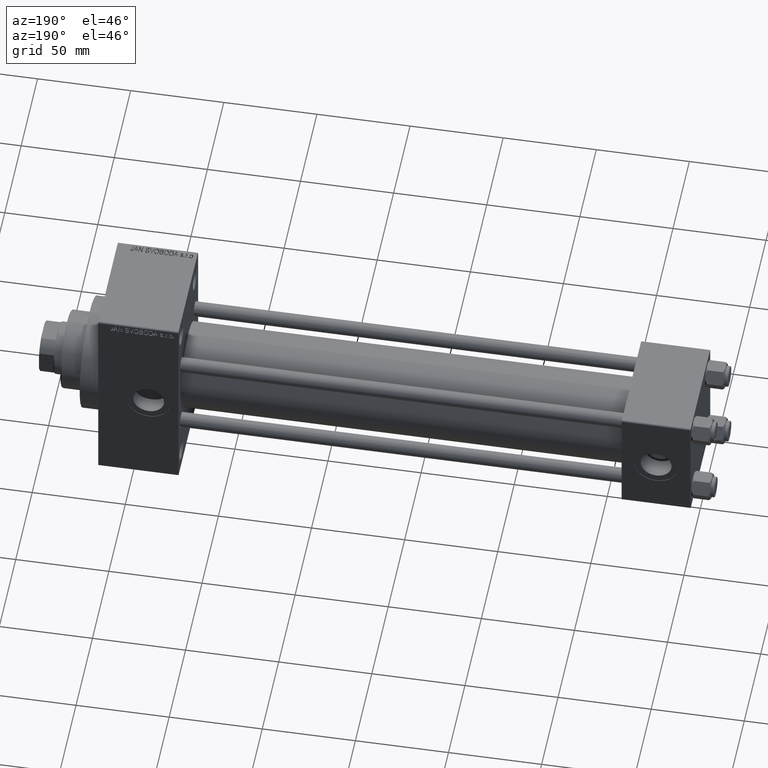
[diagram: clean part render]
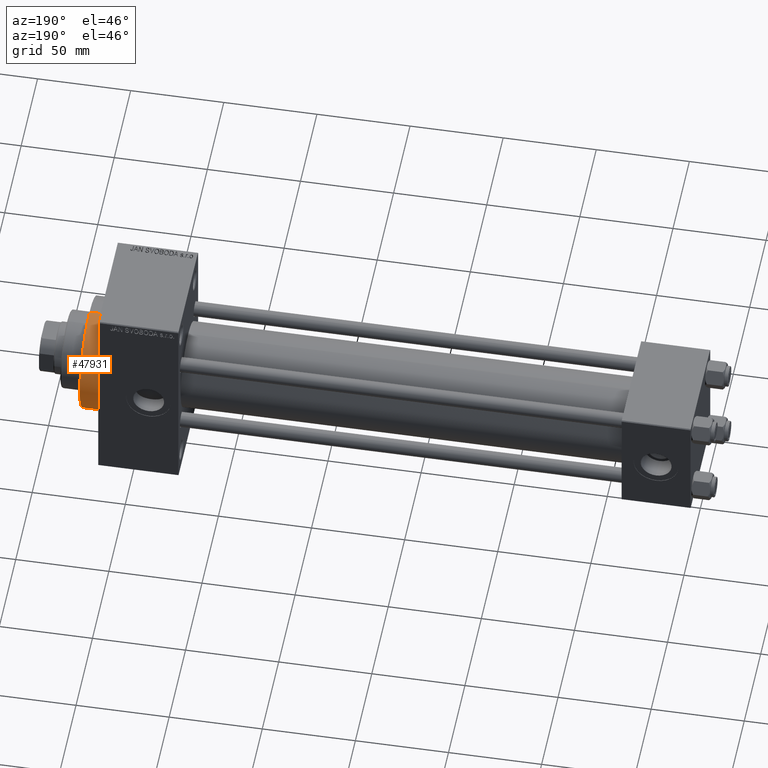
[diagram: same view with one face highlighted and labeled with its STEP entity id]
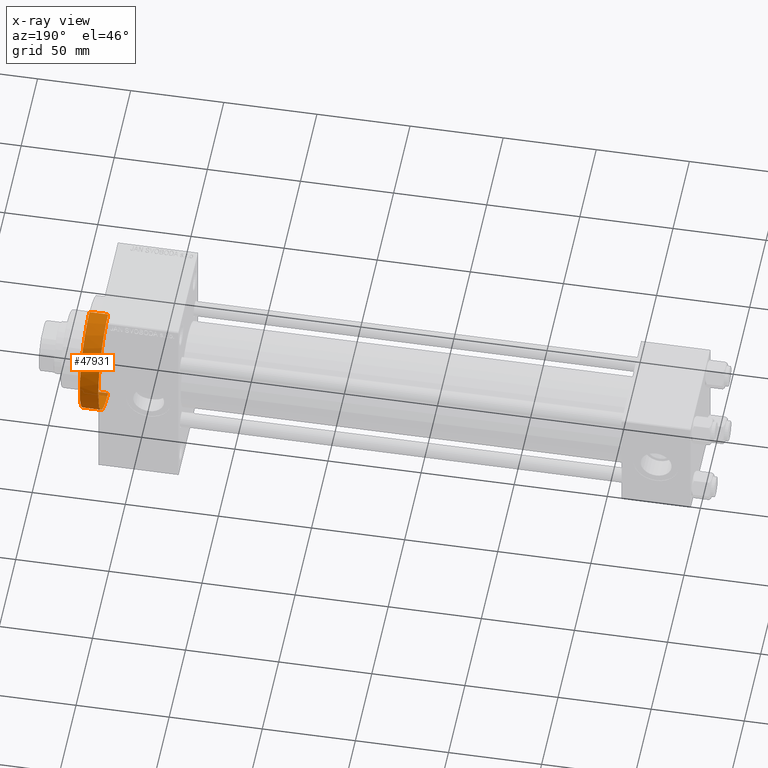
[diagram: x-ray of the same camera — body ghosted, the highlighted face saturated]
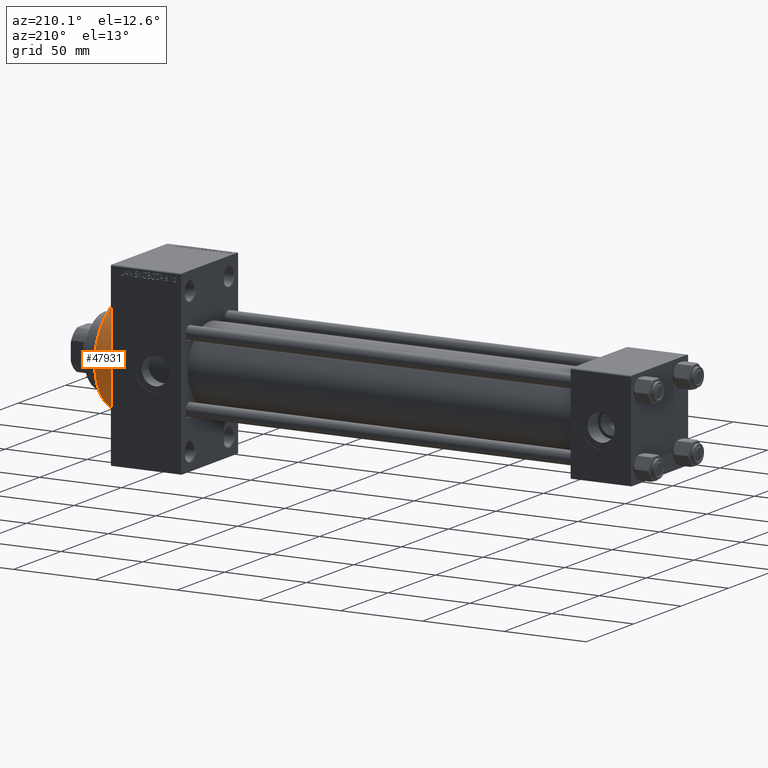
[diagram: same view with one face highlighted and labeled with its STEP entity id]
A machine part, auxiliary view. The second image highlights one B-rep face of the part: STEP entity #47931.
The next image is the same camera in x-ray: the body ghosted, the highlighted face saturated — about 2% of this face is hidden behind the body in this view.
A second angle (auxiliary view) of the same face is appended — the face is thin or edge-on in the first view.
In plain terms, the highlighted cylindrical surface (partial cylindrical patch) has radius 30 mm, axis along (-1, -0, -0).
Its self-contained STEP definition (entity closure, byte-faithful):
#766 = DIRECTION ( 'NONE',  ( 1.000000000000000000, 0.000000000000000000, 0.000000000000000000 ) ) ;
#4825 = CYLINDRICAL_SURFACE ( 'NONE', #36218, 30.00000000000000000 ) ;
#4969 = AXIS2_PLACEMENT_3D ( 'NONE', #8070, #5063, #26759 ) ;
#5063 = DIRECTION ( 'NONE',  ( 1.000000000000000000, 0.000000000000000000, 0.000000000000000000 ) ) ;
#6880 = CARTESIAN_POINT ( 'NONE',  ( 327.9999999999999432, 3.673940397442059178E-15, -30.00000000000000000 ) ) ;
#7121 = DIRECTION ( 'NONE',  ( -1.000000000000000000, -0.000000000000000000, -0.000000000000000000 ) ) ;
#7532 = CARTESIAN_POINT ( 'NONE',  ( 327.9999999999999432, 3.673940397442059178E-15, -30.00000000000000000 ) ) ;
#8070 = CARTESIAN_POINT ( 'NONE',  ( 317.9999999999999432, 0.000000000000000000, 0.000000000000000000 ) ) ;
#9299 = DIRECTION ( 'NONE',  ( -1.000000000000000000, -0.000000000000000000, -0.000000000000000000 ) ) ;
#9618 = EDGE_CURVE ( 'NONE', #33020, #22167, #27947, .T. ) ;
#10178 = CARTESIAN_POINT ( 'NONE',  ( 317.9999999999999432, 30.00000000000000000, 0.000000000000000000 ) ) ;
#12045 = VERTEX_POINT ( 'NONE', #10178 ) ;
#13563 = ORIENTED_EDGE ( 'NONE', *, *, #23058, .T. ) ;
#13591 = AXIS2_PLACEMENT_3D ( 'NONE', #34154, #38879, #42611 ) ;
#14107 = LINE ( 'NONE', #6880, #41843 ) ;
#14279 = VERTEX_POINT ( 'NONE', #31635 ) ;
#14503 = AXIS2_PLACEMENT_3D ( 'NONE', #46127, #766, #15980 ) ;
#15454 = CARTESIAN_POINT ( 'NONE',  ( 327.9999999999999432, 0.000000000000000000, 30.00000000000000000 ) ) ;
#15980 = DIRECTION ( 'NONE',  ( 0.000000000000000000, 0.000000000000000000, -1.000000000000000000 ) ) ;
#17128 = VECTOR ( 'NONE', #27539, 1000.000000000000000 ) ;
#19706 = ORIENTED_EDGE ( 'NONE', *, *, #33861, .F. ) ;
#22167 = VERTEX_POINT ( 'NONE', #15454 ) ;
#23058 = EDGE_CURVE ( 'NONE', #12045, #14279, #43174, .T. ) ;
#23283 = EDGE_CURVE ( 'NONE', #33744, #12045, #28031, .T. ) ;
#24500 = DIRECTION ( 'NONE',  ( 0.000000000000000000, 0.000000000000000000, 1.000000000000000000 ) ) ;
#25528 = CARTESIAN_POINT ( 'NONE',  ( 317.9999999999999432, 3.673940397442059178E-15, -30.00000000000000000 ) ) ;
#26759 = DIRECTION ( 'NONE',  ( 0.000000000000000000, 0.000000000000000000, -1.000000000000000000 ) ) ;
#27539 = DIRECTION ( 'NONE',  ( -1.000000000000000000, -0.000000000000000000, -0.000000000000000000 ) ) ;
#27947 = CIRCLE ( 'NONE', #13591, 30.00000000000000000 ) ;
#28031 = CIRCLE ( 'NONE', #14503, 30.00000000000000000 ) ;
#28267 = LINE ( 'NONE', #35256, #17128 ) ;
#31635 = CARTESIAN_POINT ( 'NONE',  ( 317.9999999999999432, 0.000000000000000000, 30.00000000000000000 ) ) ;
#33020 = VERTEX_POINT ( 'NONE', #7532 ) ;
#33319 = ORIENTED_EDGE ( 'NONE', *, *, #34520, .T. ) ;
#33744 = VERTEX_POINT ( 'NONE', #25528 ) ;
#33861 = EDGE_CURVE ( 'NONE', #22167, #14279, #28267, .T. ) ;
#34154 = CARTESIAN_POINT ( 'NONE',  ( 327.9999999999999432, 0.000000000000000000, 0.000000000000000000 ) ) ;
#34520 = EDGE_CURVE ( 'NONE', #33020, #33744, #14107, .T. ) ;
#35256 = CARTESIAN_POINT ( 'NONE',  ( 327.9999999999999432, 0.000000000000000000, 30.00000000000000000 ) ) ;
#35956 = CARTESIAN_POINT ( 'NONE',  ( 327.9999999999999432, 0.000000000000000000, 0.000000000000000000 ) ) ;
#36218 = AXIS2_PLACEMENT_3D ( 'NONE', #35956, #9299, #24500 ) ;
#38879 = DIRECTION ( 'NONE',  ( 1.000000000000000000, 0.000000000000000000, 0.000000000000000000 ) ) ;
#38966 = FACE_OUTER_BOUND ( 'NONE', #47895, .T. ) ;
#41843 = VECTOR ( 'NONE', #7121, 1000.000000000000000 ) ;
#42611 = DIRECTION ( 'NONE',  ( 0.000000000000000000, 0.000000000000000000, -1.000000000000000000 ) ) ;
#43174 = CIRCLE ( 'NONE', #4969, 30.00000000000000000 ) ;
#43429 = ORIENTED_EDGE ( 'NONE', *, *, #9618, .F. ) ;
#46127 = CARTESIAN_POINT ( 'NONE',  ( 317.9999999999999432, 0.000000000000000000, 0.000000000000000000 ) ) ;
#47895 = EDGE_LOOP ( 'NONE', ( #43429, #33319, #48716, #13563, #19706 ) ) ;
#47931 = ADVANCED_FACE ( 'NONE', ( #38966 ), #4825, .T. ) ;
#48716 = ORIENTED_EDGE ( 'NONE', *, *, #23283, .T. ) ;